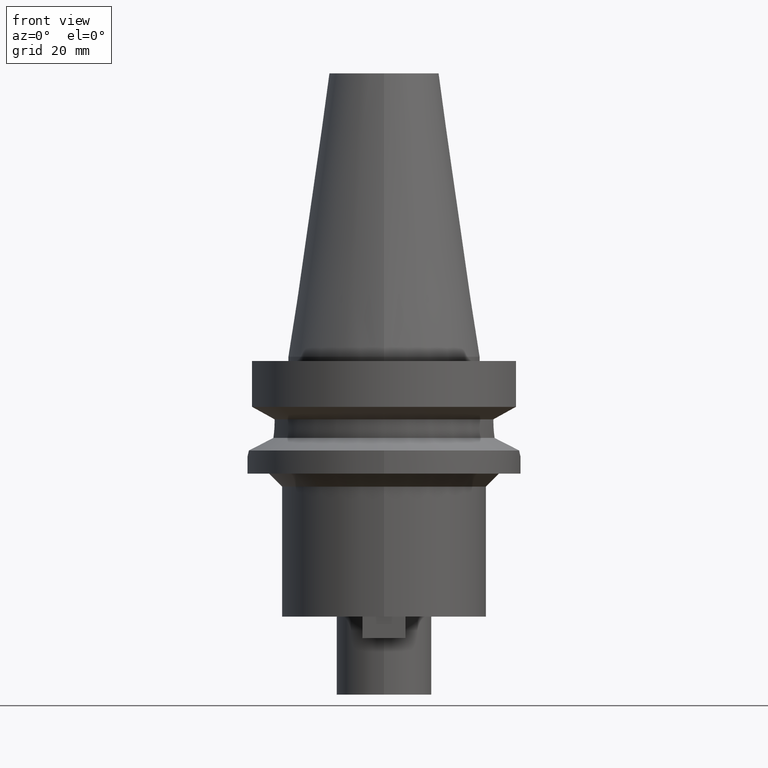
[diagram: clean part render]
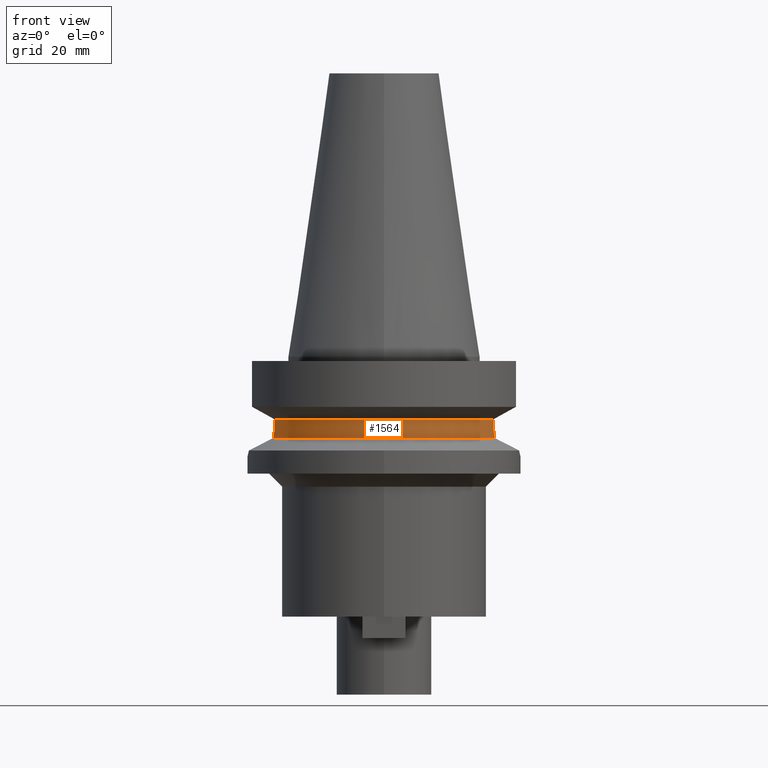
[diagram: same view with one face highlighted and labeled with its STEP entity id]
A machine part, front view. The second image highlights one B-rep face of the part: STEP entity #1564.
In plain terms, the highlighted cylindrical surface (partial cylindrical patch) has radius 26.5 mm, axis along (0, 0, -1).
Its self-contained STEP definition (entity closure, byte-faithful):
#217=DIRECTION('',(-2.941688785248E-6,9.226209856858E-6,9.999999999531E-1));
#218=VECTOR('',#217,4.977079128590E-1);
#219=CARTESIAN_POINT('',(-2.524772266958E1,-8.05E0,-1.495E1));
#220=LINE('',#219,#218);
#224=DIRECTION('',(1.011825144987E-6,3.173452867081E-6,-9.999999999945E-1));
#225=VECTOR('',#224,4.977550709454E-1);
#226=CARTESIAN_POINT('',(2.524772216594E1,-8.050001579602E0,-1.445224492906E1));
#227=LINE('',#226,#225);
#231=CARTESIAN_POINT('',(2.524772266958E1,-8.05E0,-1.495E1));
#232=CARTESIAN_POINT('',(2.524772266958E1,-8.05E0,-1.538836624581E1));
#233=CARTESIAN_POINT('',(2.527034454786E1,-7.979590381540E0,-1.625445348786E1));
#234=CARTESIAN_POINT('',(2.536984905223E1,-7.660468139848E0,-1.753893929126E1));
#235=CARTESIAN_POINT('',(2.547272591119E1,-7.310184643694E0,-1.835091906980E1));
#236=CARTESIAN_POINT('',(2.553175183775E1,-7.097862220093E0,-1.874774300139E1));
#241=CARTESIAN_POINT('',(-2.553175183775E1,-7.097862220093E0,
-1.874774300139E1));
#242=CARTESIAN_POINT('',(-2.547268458766E1,-7.310333288734E0,
-1.835064125690E1));
#243=CARTESIAN_POINT('',(-2.536978932798E1,-7.660659993583E0,
-1.753821801323E1));
#244=CARTESIAN_POINT('',(-2.527039941148E1,-7.979415271053E0,
-1.625525072301E1));
#245=CARTESIAN_POINT('',(-2.524772266958E1,-8.05E0,-1.538871362008E1));
#246=CARTESIAN_POINT('',(-2.524772266958E1,-8.05E0,-1.495E1));
#267=CARTESIAN_POINT('',(0.E0,1.065333950388E-14,-1.445225699861E1));
#268=DIRECTION('',(0.E0,0.E0,-1.E0));
#269=DIRECTION('',(9.527442516822E-1,-3.037735849057E-1,0.E0));
#270=AXIS2_PLACEMENT_3D('',#267,#268,#269);
#275=CARTESIAN_POINT('',(0.E0,1.065333950388E-14,-1.445225699861E1));
#276=DIRECTION('',(0.E0,0.E0,-1.E0));
#277=DIRECTION('',(0.E0,-1.E0,0.E0));
#278=AXIS2_PLACEMENT_3D('',#275,#276,#277);
#476=CARTESIAN_POINT('',(-2.553175183775E1,-7.097862220093E0,
-1.874774300139E1));
#481=CARTESIAN_POINT('',(0.E0,0.E0,-1.874774300139E1));
#482=DIRECTION('',(0.E0,0.E0,1.E0));
#483=DIRECTION('',(-9.634623335001E-1,-2.678438573620E-1,0.E0));
#484=AXIS2_PLACEMENT_3D('',#481,#482,#483);
#489=CARTESIAN_POINT('',(0.E0,0.E0,-1.874774300139E1));
#490=DIRECTION('',(0.E0,0.E0,1.E0));
#491=DIRECTION('',(0.E0,-1.E0,0.E0));
#492=AXIS2_PLACEMENT_3D('',#489,#490,#491);
#519=CARTESIAN_POINT('',(2.553175183775E1,-7.097862220093E0,-1.874774300139E1));
#1307=VERTEX_POINT('',#519);
#1308=VERTEX_POINT('',#231);
#1319=VERTEX_POINT('',#476);
#1320=CARTESIAN_POINT('',(0.E0,-2.65E1,-1.874774300139E1));
#1321=VERTEX_POINT('',#1320);
#1333=CARTESIAN_POINT('',(-2.524772266958E1,-8.05E0,-1.495E1));
#1334=VERTEX_POINT('',#1333);
#1335=CARTESIAN_POINT('',(-2.524772413368E1,-8.049995408042E0,
-1.445229208716E1));
#1336=VERTEX_POINT('',#1335);
#1337=CARTESIAN_POINT('',(2.524772266958E1,-8.05E0,-1.445225699861E1));
#1338=CARTESIAN_POINT('',(0.E0,-2.65E1,-1.445225699861E1));
#1339=VERTEX_POINT('',#1337);
#1340=VERTEX_POINT('',#1338);
#1542=CARTESIAN_POINT('',(0.E0,2.113372981289E-14,7.257E1));
#1543=DIRECTION('',(0.E0,0.E0,-1.E0));
#1544=DIRECTION('',(0.E0,-1.E0,0.E0));
#1545=AXIS2_PLACEMENT_3D('',#1542,#1543,#1544);
#1546=CYLINDRICAL_SURFACE('',#1545,2.65E1);
#1547=ORIENTED_EDGE('',*,*,#1529,.T.);
#1549=ORIENTED_EDGE('',*,*,#1548,.F.);
#1551=ORIENTED_EDGE('',*,*,#1550,.F.);
#1553=ORIENTED_EDGE('',*,*,#1552,.T.);
#1555=ORIENTED_EDGE('',*,*,#1554,.T.);
#1557=ORIENTED_EDGE('',*,*,#1556,.F.);
#1559=ORIENTED_EDGE('',*,*,#1558,.F.);
#1561=ORIENTED_EDGE('',*,*,#1560,.T.);
#1562=EDGE_LOOP('',(#1547,#1549,#1551,#1553,#1555,#1557,#1559,#1561));
#1563=FACE_OUTER_BOUND('',#1562,.F.);
#237=B_SPLINE_CURVE_WITH_KNOTS('',3,(#231,#232,#233,#234,#235,#236),
.UNSPECIFIED.,.F.,.F.,(4,1,1,4),(0.E0,3.333333333333E-1,6.666666666667E-1,1.E0),
.UNSPECIFIED.);
#247=B_SPLINE_CURVE_WITH_KNOTS('',3,(#241,#242,#243,#244,#245,#246),
.UNSPECIFIED.,.F.,.F.,(4,1,1,4),(0.E0,3.333333333333E-1,6.666666666667E-1,1.E0),
.UNSPECIFIED.);
#271=CIRCLE('',#270,2.65E1);
#279=CIRCLE('',#278,2.65E1);
#485=CIRCLE('',#484,2.65E1);
#493=CIRCLE('',#492,2.65E1);
#1529=EDGE_CURVE('',#1334,#1336,#220,.T.);
#1548=EDGE_CURVE('',#1340,#1336,#279,.T.);
#1550=EDGE_CURVE('',#1339,#1340,#271,.T.);
#1552=EDGE_CURVE('',#1339,#1308,#227,.T.);
#1554=EDGE_CURVE('',#1308,#1307,#237,.T.);
#1556=EDGE_CURVE('',#1321,#1307,#493,.T.);
#1558=EDGE_CURVE('',#1319,#1321,#485,.T.);
#1560=EDGE_CURVE('',#1319,#1334,#247,.T.);
#1564=ADVANCED_FACE('',(#1563),#1546,.T.);